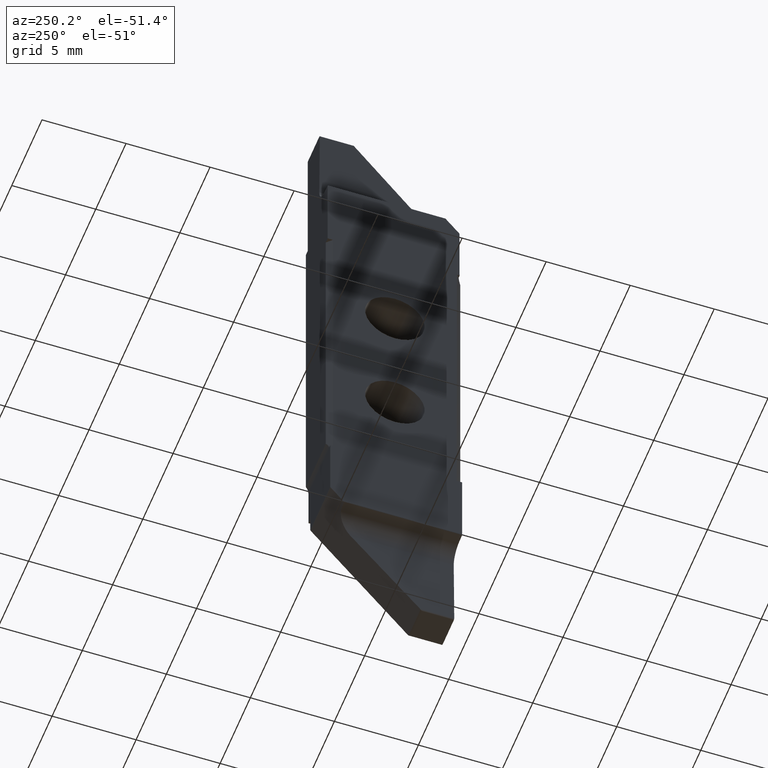
[diagram: clean part render]
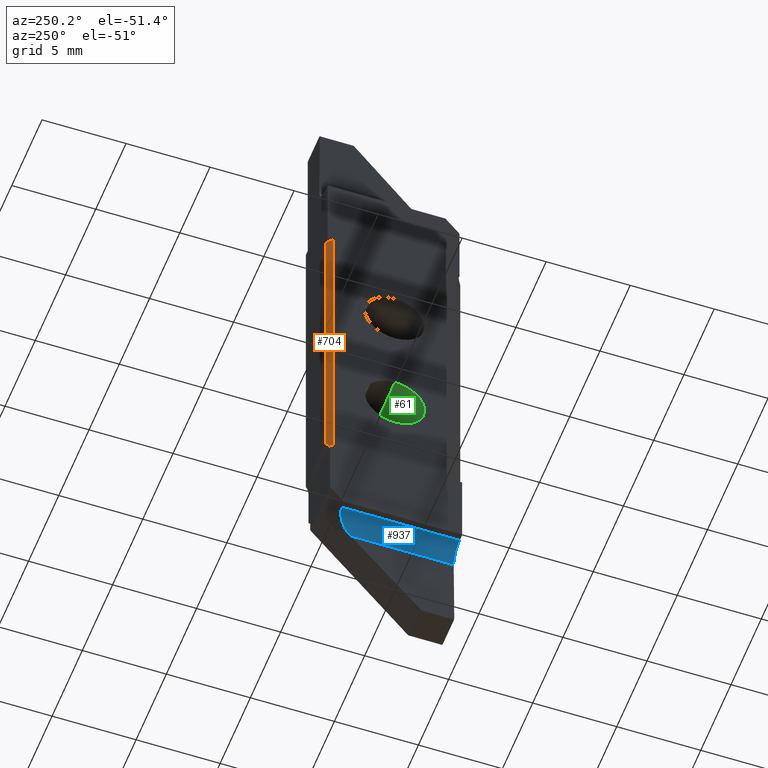
[diagram: same view with three faces highlighted in distinct colors, each labeled with its STEP entity id]
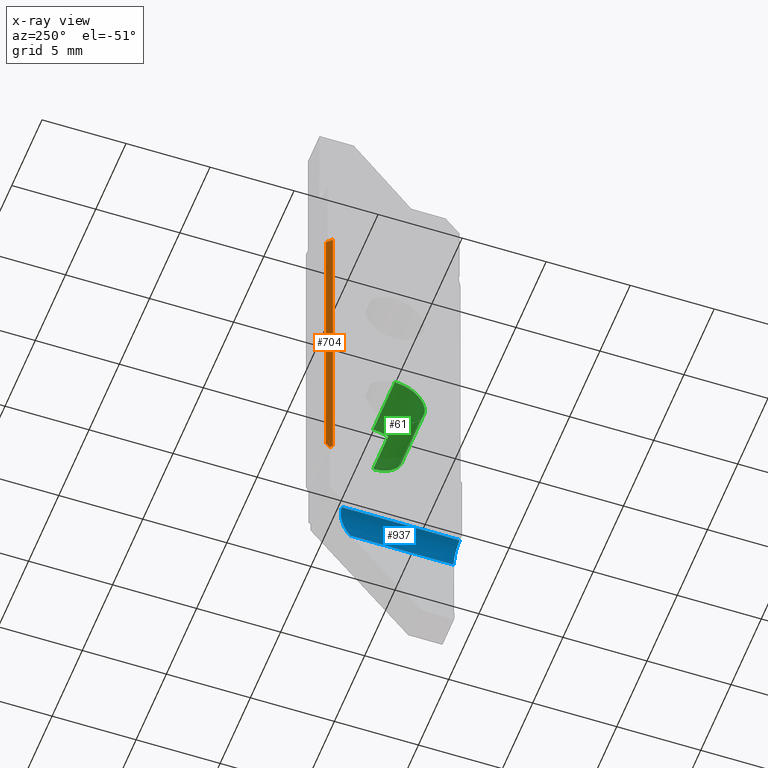
[diagram: x-ray of the same camera — body ghosted, the three highlighted faces saturated]
A machine part, auxiliary view with three faces highlighted in distinct colors.
The next image is the same camera in x-ray (body ghosted, the three faces saturated) — at least one of them is partly hidden behind the body in this view.
Their STEP definitions:

[orange] entity #704 — the highlighted planar face has unit normal (0.7071, -0.7071, 0).
#18 = ORIENTED_EDGE ( 'NONE', *, *, #197, .T. ) ;
#33 = ORIENTED_EDGE ( 'NONE', *, *, #108, .T. ) ;
#108 = EDGE_CURVE ( 'NONE', #1197, #142, #555, .T. ) ;
#142 = VERTEX_POINT ( 'NONE', #548 ) ;
#158 = VERTEX_POINT ( 'NONE', #800 ) ;
#159 = DIRECTION ( 'NONE',  ( 0.0000000000000000000, 0.0000000000000000000, -1.000000000000000000 ) ) ;
#197 = EDGE_CURVE ( 'NONE', #142, #158, #1354, .T. ) ;
#232 = DIRECTION ( 'NONE',  ( 0.7071067811865474600, 0.7071067811865475700, 0.0000000000000000000 ) ) ;
#245 = CARTESIAN_POINT ( 'NONE',  ( 6.123233995736764800E-017, 3.688000000000005100, -9.250000000000000000 ) ) ;
#259 = VECTOR ( 'NONE', #159, 1000.000000000000000 ) ;
#289 = DIRECTION ( 'NONE',  ( 0.7071067811865474600, 0.7071067811865475700, 0.0000000000000000000 ) ) ;
#294 = DIRECTION ( 'NONE',  ( 0.7071067811865475700, -0.7071067811865474600, 0.0000000000000000000 ) ) ;
#303 = CARTESIAN_POINT ( 'NONE',  ( 6.123233995736764800E-017, 3.688000000000005100, -9.250000000000000000 ) ) ;
#328 = DIRECTION ( 'NONE',  ( 0.7071067811865474600, 0.7071067811865475700, 0.0000000000000000000 ) ) ;
#353 = PLANE ( 'NONE',  #1069 ) ;
#355 = LINE ( 'NONE', #391, #1432 ) ;
#377 = CARTESIAN_POINT ( 'NONE',  ( 6.123233995736764800E-017, 3.688000000000005100, -9.250000000000000000 ) ) ;
#391 = CARTESIAN_POINT ( 'NONE',  ( 6.123233995736764800E-017, 3.688000000000005100, 9.250000000000000000 ) ) ;
#491 = CARTESIAN_POINT ( 'NONE',  ( 0.1651405735021363700, 3.853140573502141100, -9.250000000000000000 ) ) ;
#522 = ORIENTED_EDGE ( 'NONE', *, *, #663, .T. ) ;
#548 = CARTESIAN_POINT ( 'NONE',  ( 0.3119999999999950000, 4.000000000000000000, -8.821269372438047500 ) ) ;
#555 = LINE ( 'NONE', #819, #259 ) ;
#597 = ORIENTED_EDGE ( 'NONE', *, *, #1065, .T. ) ;
#646 = VERTEX_POINT ( 'NONE', #377 ) ;
#659 = CARTESIAN_POINT ( 'NONE',  ( 0.1807079032602965900, 3.868707903260301800, -9.097062527326592400 ) ) ;
#663 = EDGE_CURVE ( 'NONE', #1272, #1197, #355, .T. ) ;
#671 = CARTESIAN_POINT ( 'NONE',  ( 0.2305248878048425400, 3.918524887804847500, -8.951630480120965000 ) ) ;
#676 = CARTESIAN_POINT ( 'NONE',  ( 0.3119999999999950000, 4.000000000000000000, -8.821269372438047500 ) ) ;
#689 = VECTOR ( 'NONE', #232, 1000.000000000000000 ) ;
#697 = ORIENTED_EDGE ( 'NONE', *, *, #1414, .F. ) ;
#704 = ADVANCED_FACE ( 'NONE', ( #910 ), #353, .F. ) ;
#726 = VECTOR ( 'NONE', #946, 1000.000000000000000 ) ;
#733 = LINE ( 'NONE', #992, #726 ) ;
#800 = CARTESIAN_POINT ( 'NONE',  ( 0.1651405735021363700, 3.853140573502141100, -9.250000000000000000 ) ) ;
#819 = CARTESIAN_POINT ( 'NONE',  ( 0.3119999999999950000, 4.000000000000000000, -9.250000000000000000 ) ) ;
#910 = FACE_OUTER_BOUND ( 'NONE', #1083, .T. ) ;
#946 = DIRECTION ( 'NONE',  ( -0.0000000000000000000, -0.0000000000000000000, 1.000000000000000000 ) ) ;
#992 = CARTESIAN_POINT ( 'NONE',  ( 6.123233995736764800E-017, 3.688000000000005100, -9.250000000000000000 ) ) ;
#1065 = EDGE_CURVE ( 'NONE', #646, #1272, #733, .T. ) ;
#1069 = AXIS2_PLACEMENT_3D ( 'NONE', #303, #294, #289 ) ;
#1083 = EDGE_LOOP ( 'NONE', ( #597, #522, #33, #18, #697 ) ) ;
#1158 = CARTESIAN_POINT ( 'NONE',  ( 0.0000000000000000000, 3.688000000000004600, 9.250000000000001800 ) ) ;
#1197 = VERTEX_POINT ( 'NONE', #1319 ) ;
#1272 = VERTEX_POINT ( 'NONE', #1158 ) ;
#1319 = CARTESIAN_POINT ( 'NONE',  ( 0.3119999999999950000, 4.000000000000000000, 9.250000000000000000 ) ) ;
#1354 =( BOUNDED_CURVE ( )  B_SPLINE_CURVE ( 3, ( #676, #671, #659, #491 ),
 .UNSPECIFIED., .F., .T. ) 
 B_SPLINE_CURVE_WITH_KNOTS ( ( 4, 4 ),
 ( 5.724589191841000800, 6.181745829668152200 ),
 .UNSPECIFIED. ) 
 CURVE ( )  GEOMETRIC_REPRESENTATION_ITEM ( )  RATIONAL_B_SPLINE_CURVE ( ( 1.000000000000000000, 0.9826596815023889200, 0.9826596815023889200, 1.000000000000000000 ) ) 
 REPRESENTATION_ITEM ( '' )  );
#1380 = LINE ( 'NONE', #245, #689 ) ;
#1414 = EDGE_CURVE ( 'NONE', #646, #158, #1380, .T. ) ;
#1432 = VECTOR ( 'NONE', #328, 1000.000000000000000 ) ;

[blue] entity #937 — the highlighted cylindrical surface (edge-blend (fillet) strip) has radius 1 mm, axis along (0, -1, 0).
#29 = VERTEX_POINT ( 'NONE', #1339 ) ;
#110 = VECTOR ( 'NONE', #521, 1000.000000000000000 ) ;
#196 = VERTEX_POINT ( 'NONE', #1098 ) ;
#229 = ORIENTED_EDGE ( 'NONE', *, *, #332, .F. ) ;
#271 = VERTEX_POINT ( 'NONE', #929 ) ;
#295 = VERTEX_POINT ( 'NONE', #818 ) ;
#332 = EDGE_CURVE ( 'NONE', #196, #295, #928, .T. ) ;
#375 = EDGE_CURVE ( 'NONE', #29, #271, #1209, .T. ) ;
#382 = VECTOR ( 'NONE', #518, 1000.000000000000000 ) ;
#462 = CARTESIAN_POINT ( 'NONE',  ( 1.386970691753576900, 3.006177553973360600, -15.01745240643728800 ) ) ;
#476 = CARTESIAN_POINT ( 'NONE',  ( 0.3871229965971845200, -4.000000000000000000, -14.00000000000000400 ) ) ;
#518 = DIRECTION ( 'NONE',  ( 0.0000000000000000000, 1.000000000000000000, 0.0000000000000000000 ) ) ;
#521 = DIRECTION ( 'NONE',  ( -0.0000000000000000000, -1.000000000000000000, -0.0000000000000000000 ) ) ;
#669 = EDGE_LOOP ( 'NONE', ( #839, #875, #876, #229 ) ) ;
#818 = CARTESIAN_POINT ( 'NONE',  ( 1.386970691753576900, 2.152433614991401200, -15.01745240643729000 ) ) ;
#839 = ORIENTED_EDGE ( 'NONE', *, *, #962, .F. ) ;
#854 = FACE_OUTER_BOUND ( 'NONE', #669, .T. ) ;
#875 = ORIENTED_EDGE ( 'NONE', *, *, #375, .F. ) ;
#876 = ORIENTED_EDGE ( 'NONE', *, *, #1021, .F. ) ;
#909 =( BOUNDED_CURVE ( )  B_SPLINE_CURVE ( 3, ( #1186, #1252, #1042, #1128 ),
 .UNSPECIFIED., .F., .F. ) 
 B_SPLINE_CURVE_WITH_KNOTS ( ( 4, 4 ),
 ( 1.553343034274952400, 3.141592653589794400 ),
 .UNSPECIFIED. ) 
 CURVE ( )  GEOMETRIC_REPRESENTATION_ITEM ( )  RATIONAL_B_SPLINE_CURVE ( ( 1.000000000000000000, 0.8006061761999001500, 0.8006061761999001500, 1.000000000000000000 ) ) 
 REPRESENTATION_ITEM ( '' )  );
#928 = LINE ( 'NONE', #462, #382 ) ;
#929 = CARTESIAN_POINT ( 'NONE',  ( 0.3871229965971845200, -4.000000000000000000, -14.00000000000000400 ) ) ;
#937 = ADVANCED_FACE ( 'NONE', ( #854 ), #1097, .F. ) ;
#952 = CARTESIAN_POINT ( 'NONE',  ( 0.3871229965971857400, -4.000000000000000000, -15.00000000000000400 ) ) ;
#962 = EDGE_CURVE ( 'NONE', #271, #196, #1423, .T. ) ;
#1021 = EDGE_CURVE ( 'NONE', #295, #29, #909, .T. ) ;
#1042 = CARTESIAN_POINT ( 'NONE',  ( 0.9810483416314896800, 3.006177553973360600, -13.99999999999999800 ) ) ;
#1097 = CYLINDRICAL_SURFACE ( 'NONE', #1182, 1.000000000000000900 ) ;
#1098 = CARTESIAN_POINT ( 'NONE',  ( 1.386970691753576900, -4.000000000000000000, -15.01745240643728800 ) ) ;
#1128 = CARTESIAN_POINT ( 'NONE',  ( 0.3871229965971845200, 3.006177553973359300, -14.00000000000000400 ) ) ;
#1156 = AXIS2_PLACEMENT_3D ( 'NONE', #1195, #1347, #1324 ) ;
#1182 = AXIS2_PLACEMENT_3D ( 'NONE', #952, #1409, #1290 ) ;
#1186 = CARTESIAN_POINT ( 'NONE',  ( 1.386970691753576900, 2.152433614991401200, -15.01745240643729000 ) ) ;
#1195 = CARTESIAN_POINT ( 'NONE',  ( 0.3871229965971857400, -4.000000000000000000, -15.00000000000000400 ) ) ;
#1209 = LINE ( 'NONE', #476, #110 ) ;
#1252 = CARTESIAN_POINT ( 'NONE',  ( 1.397336118268520200, 2.650720249928117900, -14.42361751910976900 ) ) ;
#1290 = DIRECTION ( 'NONE',  ( 0.0000000000000000000, 0.0000000000000000000, -1.000000000000000000 ) ) ;
#1324 = DIRECTION ( 'NONE',  ( 0.0000000000000000000, 0.0000000000000000000, 1.000000000000000000 ) ) ;
#1339 = CARTESIAN_POINT ( 'NONE',  ( 0.3871229965971845200, 3.006177553973359300, -14.00000000000000400 ) ) ;
#1347 = DIRECTION ( 'NONE',  ( 0.0000000000000000000, 1.000000000000000000, 0.0000000000000000000 ) ) ;
#1409 = DIRECTION ( 'NONE',  ( 0.0000000000000000000, -1.000000000000000000, 0.0000000000000000000 ) ) ;
#1423 = CIRCLE ( 'NONE', #1156, 1.000000000000000900 ) ;

[green] entity #61 — the highlighted cylindrical surface (edge-blend (fillet) strip) has radius 1.775 mm, axis along (-1, 0, 0).
#61 = ADVANCED_FACE ( 'NONE', ( #121 ), #117, .F. ) ;
#67 = EDGE_LOOP ( 'NONE', ( #343, #150, #390, #500 ) ) ;
#117 = CYLINDRICAL_SURFACE ( 'NONE', #683, 1.774999999999993700 ) ;
#121 = FACE_OUTER_BOUND ( 'NONE', #67, .T. ) ;
#141 = CARTESIAN_POINT ( 'NONE',  ( 0.0000000000000000000, -3.164041088064407000E-032, -5.524999999999993200 ) ) ;
#150 = ORIENTED_EDGE ( 'NONE', *, *, #1393, .F. ) ;
#182 = DIRECTION ( 'NONE',  ( 1.335124847897346200E-016, -1.000000000000000000, 0.0000000000000000000 ) ) ;
#212 = LINE ( 'NONE', #1138, #1350 ) ;
#216 = DIRECTION ( 'NONE',  ( 1.000000000000000000, 1.335124847897346200E-016, 0.0000000000000000000 ) ) ;
#233 = CARTESIAN_POINT ( 'NONE',  ( 0.0000000000000000000, 0.0000000000000000000, -3.750000000000000000 ) ) ;
#243 = VERTEX_POINT ( 'NONE', #844 ) ;
#250 = DIRECTION ( 'NONE',  ( -1.000000000000000000, 0.0000000000000000000, 0.0000000000000000000 ) ) ;
#343 = ORIENTED_EDGE ( 'NONE', *, *, #1213, .F. ) ;
#376 = CIRCLE ( 'NONE', #1007, 1.774999999999993700 ) ;
#378 = DIRECTION ( 'NONE',  ( 0.0000000000000000000, 0.0000000000000000000, -1.000000000000000000 ) ) ;
#386 = DIRECTION ( 'NONE',  ( -1.000000000000000000, 0.0000000000000000000, 0.0000000000000000000 ) ) ;
#390 = ORIENTED_EDGE ( 'NONE', *, *, #1274, .T. ) ;
#395 = CARTESIAN_POINT ( 'NONE',  ( 3.600000000000000100, 0.0000000000000000000, -3.750000000000000000 ) ) ;
#402 = CARTESIAN_POINT ( 'NONE',  ( 4.814824860968089600E-032, -2.173748068486544500E-016, -1.975000000000006300 ) ) ;
#473 = VERTEX_POINT ( 'NONE', #481 ) ;
#481 = CARTESIAN_POINT ( 'NONE',  ( 3.600000000000000100, 0.0000000000000000000, -5.524999999999998600 ) ) ;
#483 = VERTEX_POINT ( 'NONE', #402 ) ;
#492 = EDGE_CURVE ( 'NONE', #483, #797, #376, .T. ) ;
#500 = ORIENTED_EDGE ( 'NONE', *, *, #492, .F. ) ;
#601 = CARTESIAN_POINT ( 'NONE',  ( -1.000000000000000000, 0.0000000000000000000, -3.750000000000000000 ) ) ;
#608 = DIRECTION ( 'NONE',  ( 0.0000000000000000000, 0.0000000000000000000, -1.000000000000000000 ) ) ;
#631 = VECTOR ( 'NONE', #1271, 1000.000000000000000 ) ;
#683 = AXIS2_PLACEMENT_3D ( 'NONE', #601, #250, #608 ) ;
#797 = VERTEX_POINT ( 'NONE', #141 ) ;
#844 = CARTESIAN_POINT ( 'NONE',  ( 3.600000000000000100, -2.173748068486550500E-016, -1.975000000000001000 ) ) ;
#881 = AXIS2_PLACEMENT_3D ( 'NONE', #395, #386, #378 ) ;
#1007 = AXIS2_PLACEMENT_3D ( 'NONE', #233, #216, #182 ) ;
#1070 = CIRCLE ( 'NONE', #881, 1.774999999999998800 ) ;
#1130 = DIRECTION ( 'NONE',  ( -1.000000000000000000, 0.0000000000000000000, 0.0000000000000000000 ) ) ;
#1138 = CARTESIAN_POINT ( 'NONE',  ( -1.000000000000000000, 0.0000000000000000000, -5.524999999999993200 ) ) ;
#1213 = EDGE_CURVE ( 'NONE', #243, #483, #1291, .T. ) ;
#1271 = DIRECTION ( 'NONE',  ( -1.000000000000000000, 0.0000000000000000000, 0.0000000000000000000 ) ) ;
#1274 = EDGE_CURVE ( 'NONE', #473, #797, #212, .T. ) ;
#1276 = CARTESIAN_POINT ( 'NONE',  ( -1.000000000000000000, -2.173748068486544000E-016, -1.975000000000006300 ) ) ;
#1291 = LINE ( 'NONE', #1276, #631 ) ;
#1350 = VECTOR ( 'NONE', #1130, 1000.000000000000000 ) ;
#1393 = EDGE_CURVE ( 'NONE', #473, #243, #1070, .T. ) ;